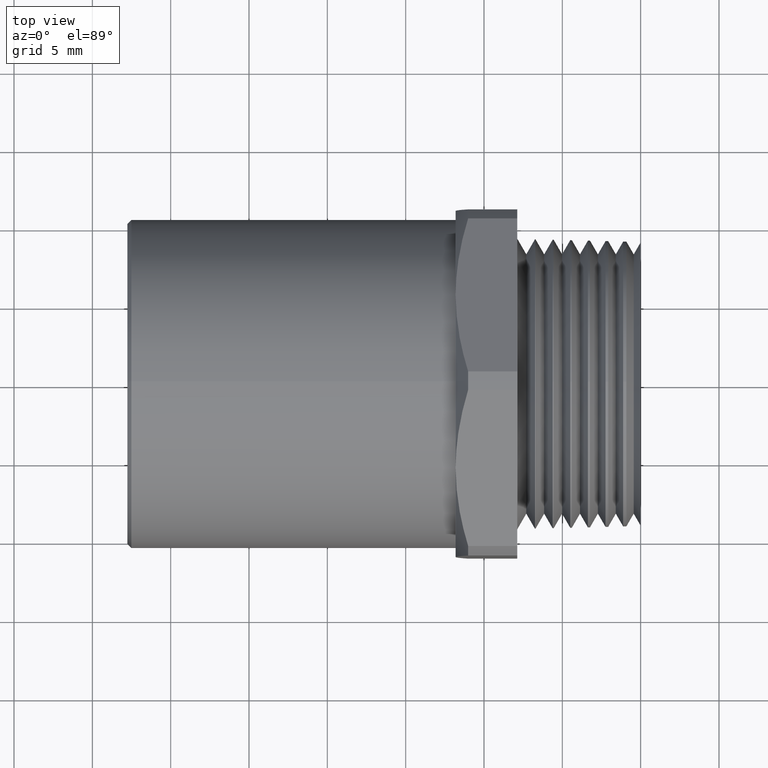
[diagram: clean part render]
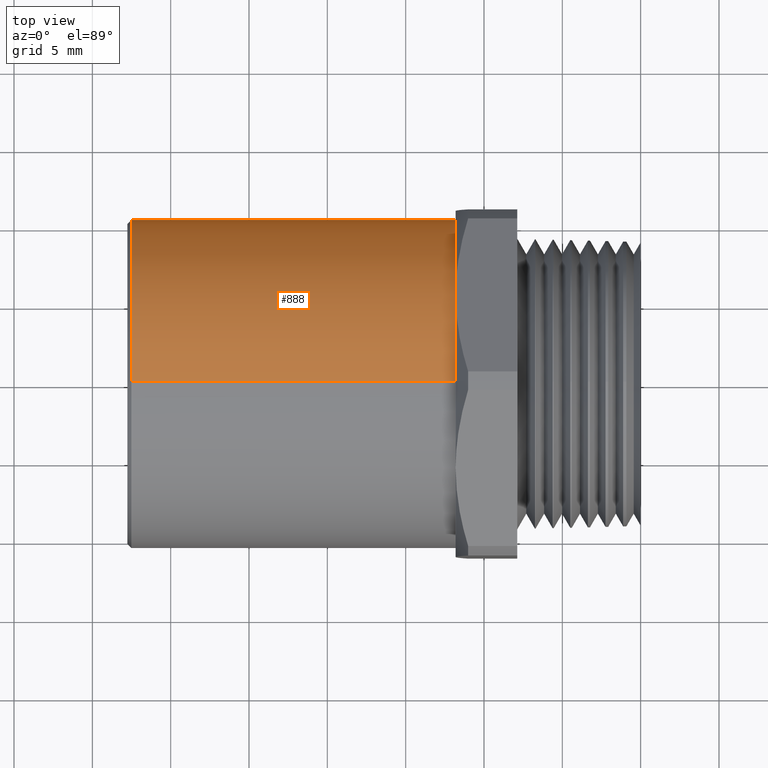
[diagram: same view with one face highlighted and labeled with its STEP entity id]
A machine part, top view. The second image highlights one B-rep face of the part: STEP entity #888.
In plain terms, the highlighted cylindrical surface (partial cylindrical patch) has radius 10.4965 mm, axis along (-1, 0, 0).
Its self-contained STEP definition (entity closure, byte-faithful):
#454 = LINE ( 'NONE', #514, #513 ) ;
#487 = DIRECTION ( 'NONE',  ( 0.0000000000000000000, 0.0000000000000000000, 1.000000000000000000 ) ) ;
#488 = AXIS2_PLACEMENT_3D ( 'NONE', #500, #498, #487 ) ;
#496 = CYLINDRICAL_SURFACE ( 'NONE', #488, 0.4132500000000000100 ) ;
#497 = FACE_OUTER_BOUND ( 'NONE', #885, .T. ) ;
#498 = DIRECTION ( 'NONE',  ( -1.000000000000000000, 0.0000000000000000000, 0.0000000000000000000 ) ) ;
#500 = CARTESIAN_POINT ( 'NONE',  ( -0.5911096051061856000, 0.0000000000000000000, 0.0000000000000000000 ) ) ;
#501 = CARTESIAN_POINT ( 'NONE',  ( -0.4649999999999997500, 5.060852897476437900E-017, -0.4132500000000001200 ) ) ;
#502 = DIRECTION ( 'NONE',  ( -1.000000000000000000, 0.0000000000000000000, 0.0000000000000000000 ) ) ;
#503 = VECTOR ( 'NONE', #502, 39.37007874015748100 ) ;
#504 = CARTESIAN_POINT ( 'NONE',  ( -0.5911096051061856000, 5.060852897476437300E-017, -0.4132500000000000100 ) ) ;
#505 = LINE ( 'NONE', #504, #503 ) ;
#506 = CARTESIAN_POINT ( 'NONE',  ( -0.4649999999999997500, 0.0000000000000000000, 0.4132500000000001700 ) ) ;
#507 = DIRECTION ( 'NONE',  ( 0.0000000000000000000, 0.0000000000000000000, 1.000000000000000000 ) ) ;
#508 = DIRECTION ( 'NONE',  ( -1.000000000000000000, 0.0000000000000000000, 0.0000000000000000000 ) ) ;
#509 = CARTESIAN_POINT ( 'NONE',  ( -0.4649999999999997500, 0.0000000000000000000, 0.0000000000000000000 ) ) ;
#510 = AXIS2_PLACEMENT_3D ( 'NONE', #509, #508, #507 ) ;
#511 = CIRCLE ( 'NONE', #510, 0.4132500000000001700 ) ;
#512 = DIRECTION ( 'NONE',  ( -1.000000000000000000, 0.0000000000000000000, 0.0000000000000000000 ) ) ;
#513 = VECTOR ( 'NONE', #512, 39.37007874015748100 ) ;
#514 = CARTESIAN_POINT ( 'NONE',  ( -0.5911096051061856000, 0.0000000000000000000, 0.4132500000000000100 ) ) ;
#876 = ORIENTED_EDGE ( 'NONE', *, *, #1486, .T. ) ;
#877 = EDGE_CURVE ( 'NONE', #880, #1490, #454, .T. ) ;
#878 = ORIENTED_EDGE ( 'NONE', *, *, #877, .F. ) ;
#879 = EDGE_CURVE ( 'NONE', #880, #883, #511, .T. ) ;
#880 = VERTEX_POINT ( 'NONE', #506 ) ;
#881 = EDGE_CURVE ( 'NONE', #883, #1483, #505, .T. ) ;
#882 = ORIENTED_EDGE ( 'NONE', *, *, #881, .T. ) ;
#883 = VERTEX_POINT ( 'NONE', #501 ) ;
#884 = ORIENTED_EDGE ( 'NONE', *, *, #879, .T. ) ;
#885 = EDGE_LOOP ( 'NONE', ( #884, #882, #876, #878 ) ) ;
#888 = ADVANCED_FACE ( 'NONE', ( #497 ), #496, .T. ) ;
#1483 = VERTEX_POINT ( 'NONE', #2197 ) ;
#1486 = EDGE_CURVE ( 'NONE', #1483, #1490, #2195, .T. ) ;
#1490 = VERTEX_POINT ( 'NONE', #2179 ) ;
#2179 = CARTESIAN_POINT ( 'NONE',  ( -1.279999999999999800, 0.0000000000000000000, 0.4132500000000000100 ) ) ;
#2191 = DIRECTION ( 'NONE',  ( 0.0000000000000000000, 0.0000000000000000000, -1.000000000000000000 ) ) ;
#2192 = DIRECTION ( 'NONE',  ( 1.000000000000000000, 0.0000000000000000000, 0.0000000000000000000 ) ) ;
#2193 = CARTESIAN_POINT ( 'NONE',  ( -1.279999999999999800, 0.0000000000000000000, 0.0000000000000000000 ) ) ;
#2194 = AXIS2_PLACEMENT_3D ( 'NONE', #2193, #2192, #2191 ) ;
#2195 = CIRCLE ( 'NONE', #2194, 0.4132500000000000100 ) ;
#2197 = CARTESIAN_POINT ( 'NONE',  ( -1.279999999999999800, 5.060852897476437300E-017, -0.4132500000000000100 ) ) ;